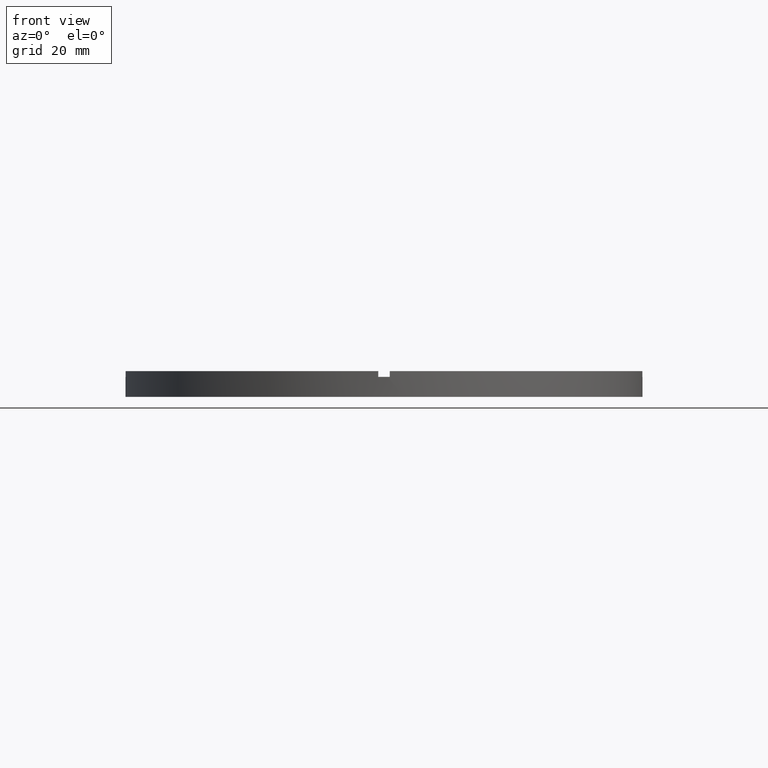
[diagram: clean part render]
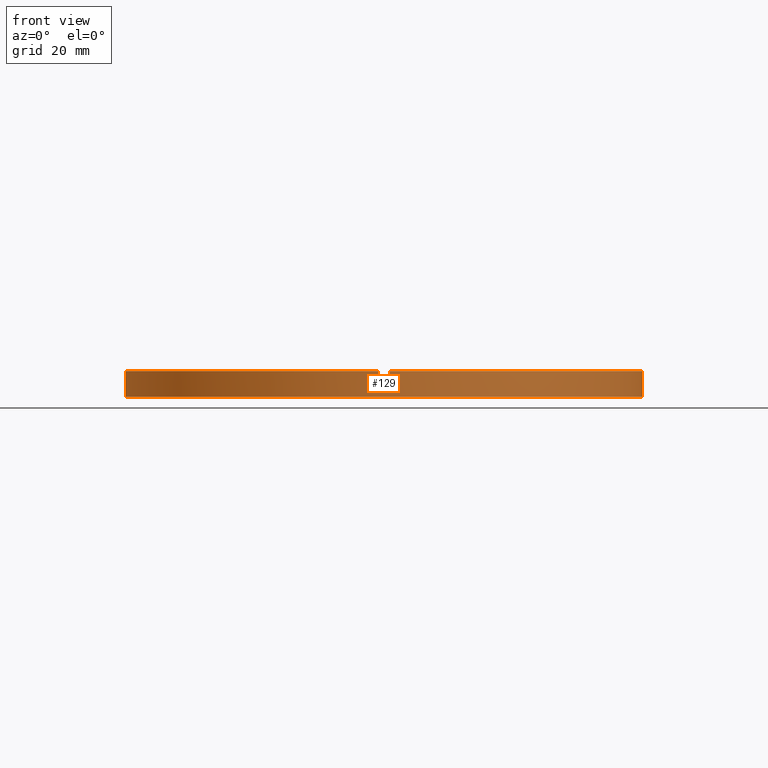
[diagram: same view with one face highlighted and labeled with its STEP entity id]
A machine part, front view. The second image highlights one B-rep face of the part: STEP entity #129.
In plain terms, the highlighted cylindrical surface (partial cylindrical patch) has radius 45 mm, axis along (-0, -0, -1).
Its self-contained STEP definition (entity closure, byte-faithful):
#6 = AXIS2_PLACEMENT_3D ( 'NONE', #40, #591, #525 ) ;
#17 = DIRECTION ( 'NONE',  ( -0.000000000000000000, -0.000000000000000000, -1.000000000000000000 ) ) ;
#27 = EDGE_CURVE ( 'NONE', #653, #674, #391, .T. ) ;
#40 = CARTESIAN_POINT ( 'NONE',  ( 0.000000000000000000, 0.000000000000000000, 4.500000000000000000 ) ) ;
#45 = AXIS2_PLACEMENT_3D ( 'NONE', #757, #221, #305 ) ;
#50 = DIRECTION ( 'NONE',  ( 0.000000000000000000, 0.000000000000000000, 1.000000000000000000 ) ) ;
#65 = EDGE_CURVE ( 'NONE', #184, #417, #131, .T. ) ;
#74 = CARTESIAN_POINT ( 'NONE',  ( -1.000000000000158096, -44.98888751680797071, 4.500000000000000000 ) ) ;
#75 = DIRECTION ( 'NONE',  ( -0.000000000000000000, -0.000000000000000000, -1.000000000000000000 ) ) ;
#80 = CARTESIAN_POINT ( 'NONE',  ( 45.00000000000000711, 5.510910596163090344E-15, 4.500000000000000000 ) ) ;
#90 = DIRECTION ( 'NONE',  ( 1.000000000000000000, 0.000000000000000000, 0.000000000000000000 ) ) ;
#114 = EDGE_CURVE ( 'NONE', #653, #739, #152, .T. ) ;
#120 = CARTESIAN_POINT ( 'NONE',  ( 0.9999999999998419042, -44.98888751680797782, 3.499999999999999556 ) ) ;
#123 = CARTESIAN_POINT ( 'NONE',  ( 0.000000000000000000, 0.000000000000000000, 3.499999999999999556 ) ) ;
#129 = ADVANCED_FACE ( 'NONE', ( #628 ), #645, .T. ) ;
#131 = LINE ( 'NONE', #562, #651 ) ;
#132 = LINE ( 'NONE', #80, #649 ) ;
#135 = EDGE_CURVE ( 'NONE', #184, #742, #631, .T. ) ;
#136 = CARTESIAN_POINT ( 'NONE',  ( 44.98888751680797071, -1.000000000000156097, 4.500000000000000000 ) ) ;
#137 = VECTOR ( 'NONE', #688, 1000.000000000000000 ) ;
#138 = CARTESIAN_POINT ( 'NONE',  ( -44.98888751680797071, -1.000000000000029754, 3.499999999999999556 ) ) ;
#139 = CARTESIAN_POINT ( 'NONE',  ( -44.98888751680797071, -1.000000000000029754, 4.500000000000000000 ) ) ;
#152 = LINE ( 'NONE', #388, #137 ) ;
#166 = CIRCLE ( 'NONE', #310, 45.00000000000000711 ) ;
#174 = VECTOR ( 'NONE', #289, 1000.000000000000000 ) ;
#178 = LINE ( 'NONE', #136, #174 ) ;
#179 = ORIENTED_EDGE ( 'NONE', *, *, #65, .T. ) ;
#184 = VERTEX_POINT ( 'NONE', #444 ) ;
#200 = ORIENTED_EDGE ( 'NONE', *, *, #114, .T. ) ;
#203 = EDGE_CURVE ( 'NONE', #236, #648, #132, .T. ) ;
#221 = DIRECTION ( 'NONE',  ( -0.000000000000000000, -0.000000000000000000, -1.000000000000000000 ) ) ;
#227 = EDGE_CURVE ( 'NONE', #685, #742, #178, .T. ) ;
#229 = ORIENTED_EDGE ( 'NONE', *, *, #275, .F. ) ;
#236 = VERTEX_POINT ( 'NONE', #530 ) ;
#250 = CARTESIAN_POINT ( 'NONE',  ( -1.000000000000158096, -44.98888751680797071, 3.499999999999999556 ) ) ;
#252 = VERTEX_POINT ( 'NONE', #250 ) ;
#260 = CARTESIAN_POINT ( 'NONE',  ( 45.00000000000000711, 5.510910596163090344E-15, 0.000000000000000000 ) ) ;
#263 = LINE ( 'NONE', #74, #766 ) ;
#266 = CARTESIAN_POINT ( 'NONE',  ( 0.000000000000000000, 0.000000000000000000, 3.499999999999999556 ) ) ;
#267 = CIRCLE ( 'NONE', #532, 45.00000000000000711 ) ;
#275 = EDGE_CURVE ( 'NONE', #685, #236, #166, .T. ) ;
#287 = CIRCLE ( 'NONE', #300, 45.00000000000000711 ) ;
#289 = DIRECTION ( 'NONE',  ( 0.000000000000000000, 0.000000000000000000, 1.000000000000000000 ) ) ;
#294 = CARTESIAN_POINT ( 'NONE',  ( 0.000000000000000000, 0.000000000000000000, 0.000000000000000000 ) ) ;
#300 = AXIS2_PLACEMENT_3D ( 'NONE', #318, #420, #371 ) ;
#305 = DIRECTION ( 'NONE',  ( -1.000000000000000000, 0.000000000000000000, 0.000000000000000000 ) ) ;
#310 = AXIS2_PLACEMENT_3D ( 'NONE', #266, #601, #326 ) ;
#311 = CARTESIAN_POINT ( 'NONE',  ( -45.00000000000000711, 0.000000000000000000, 0.000000000000000000 ) ) ;
#312 = DIRECTION ( 'NONE',  ( 0.000000000000000000, 0.000000000000000000, 1.000000000000000000 ) ) ;
#316 = DIRECTION ( 'NONE',  ( 1.000000000000000000, 0.000000000000000000, 0.000000000000000000 ) ) ;
#318 = CARTESIAN_POINT ( 'NONE',  ( 0.000000000000000000, 0.000000000000000000, 4.500000000000000000 ) ) ;
#321 = CIRCLE ( 'NONE', #366, 45.00000000000000711 ) ;
#326 = DIRECTION ( 'NONE',  ( 1.000000000000000000, 0.000000000000000000, 0.000000000000000000 ) ) ;
#328 = VECTOR ( 'NONE', #75, 1000.000000000000000 ) ;
#350 = CARTESIAN_POINT ( 'NONE',  ( 44.98888751680797071, -1.000000000000156097, 3.499999999999999556 ) ) ;
#353 = CARTESIAN_POINT ( 'NONE',  ( 44.98888751680797071, -1.000000000000156097, 4.500000000000000000 ) ) ;
#356 = CARTESIAN_POINT ( 'NONE',  ( -1.000000000000158096, -44.98888751680797071, 4.500000000000000000 ) ) ;
#359 = DIRECTION ( 'NONE',  ( 1.000000000000000000, 0.000000000000000000, 0.000000000000000000 ) ) ;
#366 = AXIS2_PLACEMENT_3D ( 'NONE', #595, #626, #316 ) ;
#371 = DIRECTION ( 'NONE',  ( 1.000000000000000000, 0.000000000000000000, 0.000000000000000000 ) ) ;
#388 = CARTESIAN_POINT ( 'NONE',  ( -45.00000000000000711, 0.000000000000000000, 4.500000000000000000 ) ) ;
#391 = CIRCLE ( 'NONE', #750, 45.00000000000000711 ) ;
#397 = ORIENTED_EDGE ( 'NONE', *, *, #548, .T. ) ;
#406 = ORIENTED_EDGE ( 'NONE', *, *, #27, .F. ) ;
#407 = CARTESIAN_POINT ( 'NONE',  ( -45.00000000000000711, 0.000000000000000000, 3.499999999999999556 ) ) ;
#408 = ORIENTED_EDGE ( 'NONE', *, *, #203, .F. ) ;
#417 = VERTEX_POINT ( 'NONE', #120 ) ;
#420 = DIRECTION ( 'NONE',  ( 0.000000000000000000, 0.000000000000000000, 1.000000000000000000 ) ) ;
#422 = ORIENTED_EDGE ( 'NONE', *, *, #758, .F. ) ;
#430 = EDGE_CURVE ( 'NONE', #747, #726, #287, .T. ) ;
#444 = CARTESIAN_POINT ( 'NONE',  ( 0.9999999999998419042, -44.98888751680797782, 4.500000000000000000 ) ) ;
#489 = ORIENTED_EDGE ( 'NONE', *, *, #430, .F. ) ;
#525 = DIRECTION ( 'NONE',  ( 1.000000000000000000, 0.000000000000000000, 0.000000000000000000 ) ) ;
#530 = CARTESIAN_POINT ( 'NONE',  ( 45.00000000000000711, 5.510910596163090344E-15, 3.499999999999999556 ) ) ;
#532 = AXIS2_PLACEMENT_3D ( 'NONE', #294, #50, #90 ) ;
#537 = EDGE_CURVE ( 'NONE', #252, #726, #263, .T. ) ;
#543 = DIRECTION ( 'NONE',  ( -0.000000000000000000, -0.000000000000000000, -1.000000000000000000 ) ) ;
#548 = EDGE_CURVE ( 'NONE', #739, #648, #267, .T. ) ;
#562 = CARTESIAN_POINT ( 'NONE',  ( 0.9999999999998419042, -44.98888751680797782, 4.500000000000000000 ) ) ;
#573 = LINE ( 'NONE', #139, #328 ) ;
#591 = DIRECTION ( 'NONE',  ( 0.000000000000000000, 0.000000000000000000, 1.000000000000000000 ) ) ;
#593 = CARTESIAN_POINT ( 'NONE',  ( -44.98888751680797071, -1.000000000000029754, 4.500000000000000000 ) ) ;
#595 = CARTESIAN_POINT ( 'NONE',  ( 0.000000000000000000, 0.000000000000000000, 3.499999999999999556 ) ) ;
#601 = DIRECTION ( 'NONE',  ( 0.000000000000000000, 0.000000000000000000, 1.000000000000000000 ) ) ;
#626 = DIRECTION ( 'NONE',  ( -0.000000000000000000, 0.000000000000000000, 1.000000000000000000 ) ) ;
#628 = FACE_OUTER_BOUND ( 'NONE', #711, .T. ) ;
#631 = CIRCLE ( 'NONE', #6, 45.00000000000000711 ) ;
#645 = CYLINDRICAL_SURFACE ( 'NONE', #45, 45.00000000000000711 ) ;
#648 = VERTEX_POINT ( 'NONE', #260 ) ;
#649 = VECTOR ( 'NONE', #543, 1000.000000000000000 ) ;
#651 = VECTOR ( 'NONE', #17, 1000.000000000000000 ) ;
#653 = VERTEX_POINT ( 'NONE', #407 ) ;
#674 = VERTEX_POINT ( 'NONE', #138 ) ;
#685 = VERTEX_POINT ( 'NONE', #350 ) ;
#688 = DIRECTION ( 'NONE',  ( -0.000000000000000000, -0.000000000000000000, -1.000000000000000000 ) ) ;
#711 = EDGE_LOOP ( 'NONE', ( #408, #229, #746, #738, #179, #422, #735, #489, #715, #406, #200, #397 ) ) ;
#715 = ORIENTED_EDGE ( 'NONE', *, *, #782, .T. ) ;
#726 = VERTEX_POINT ( 'NONE', #356 ) ;
#735 = ORIENTED_EDGE ( 'NONE', *, *, #537, .T. ) ;
#738 = ORIENTED_EDGE ( 'NONE', *, *, #135, .F. ) ;
#739 = VERTEX_POINT ( 'NONE', #311 ) ;
#740 = DIRECTION ( 'NONE',  ( 0.000000000000000000, 0.000000000000000000, 1.000000000000000000 ) ) ;
#742 = VERTEX_POINT ( 'NONE', #353 ) ;
#746 = ORIENTED_EDGE ( 'NONE', *, *, #227, .T. ) ;
#747 = VERTEX_POINT ( 'NONE', #593 ) ;
#750 = AXIS2_PLACEMENT_3D ( 'NONE', #123, #740, #359 ) ;
#757 = CARTESIAN_POINT ( 'NONE',  ( 0.000000000000000000, 0.000000000000000000, 4.500000000000000000 ) ) ;
#758 = EDGE_CURVE ( 'NONE', #252, #417, #321, .T. ) ;
#766 = VECTOR ( 'NONE', #312, 1000.000000000000000 ) ;
#782 = EDGE_CURVE ( 'NONE', #747, #674, #573, .T. ) ;